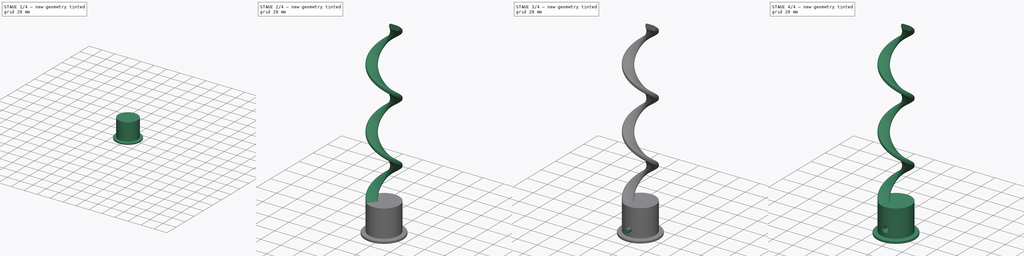
[diagram: build sequence overview — one tinted view per stage of 4, left to right]
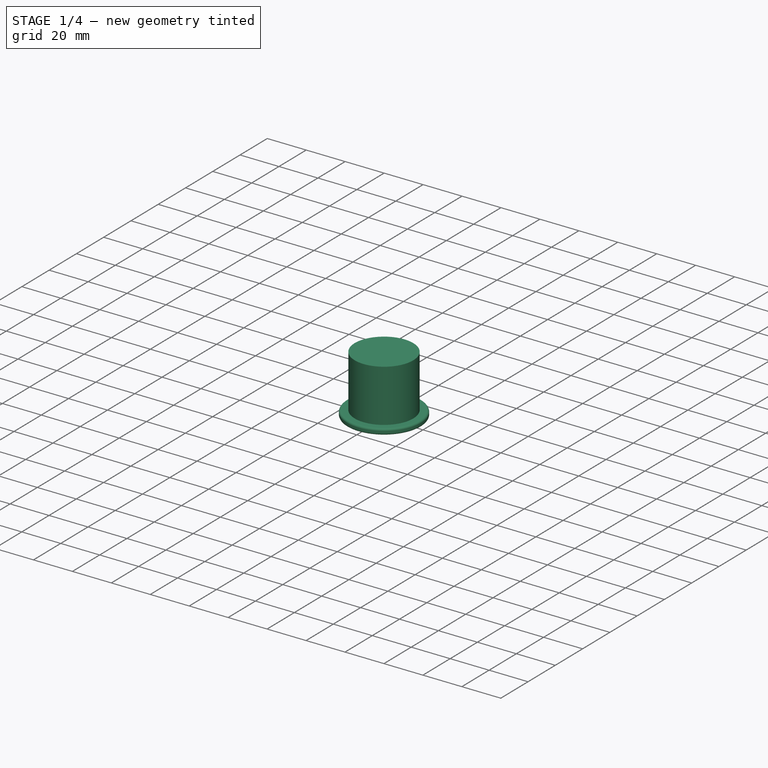
[diagram: stage 1 of 4 — iso view after this stage's code; geometry added in this stage tinted green]
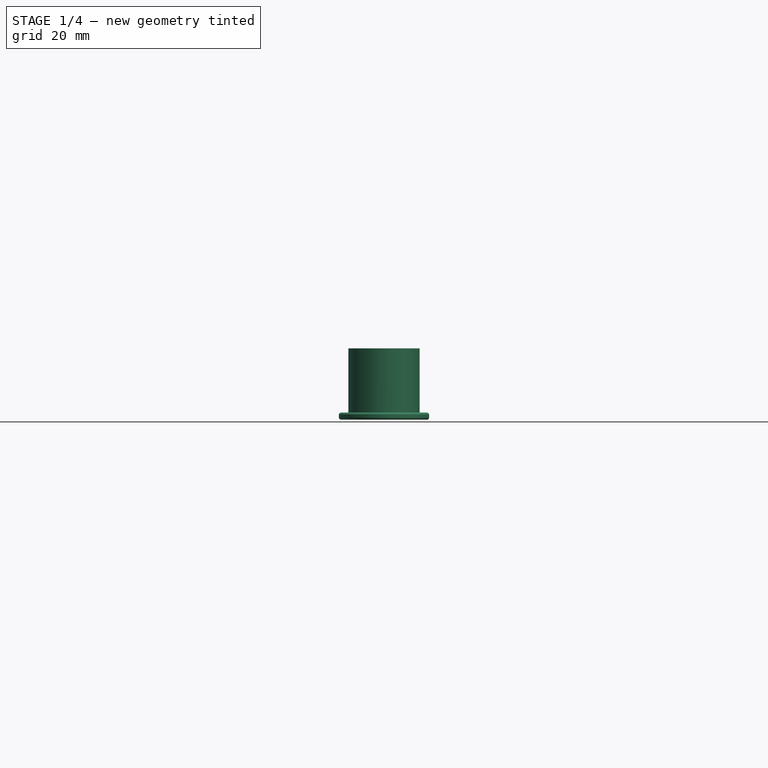
[diagram: stage 1 of 4 — front view after this stage's code; geometry added in this stage tinted green]
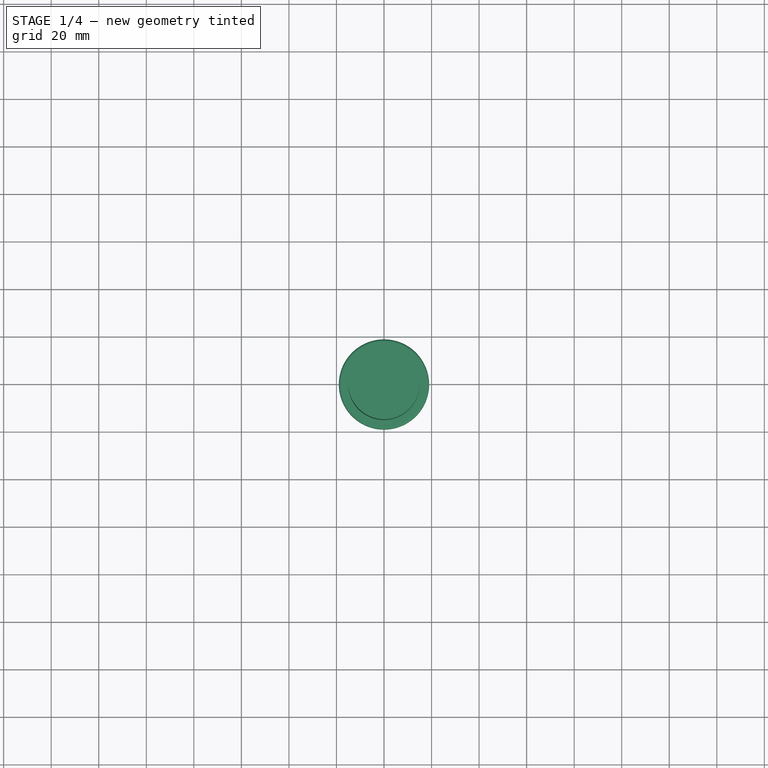
[diagram: stage 1 of 4 — top view after this stage's code; geometry added in this stage tinted green]
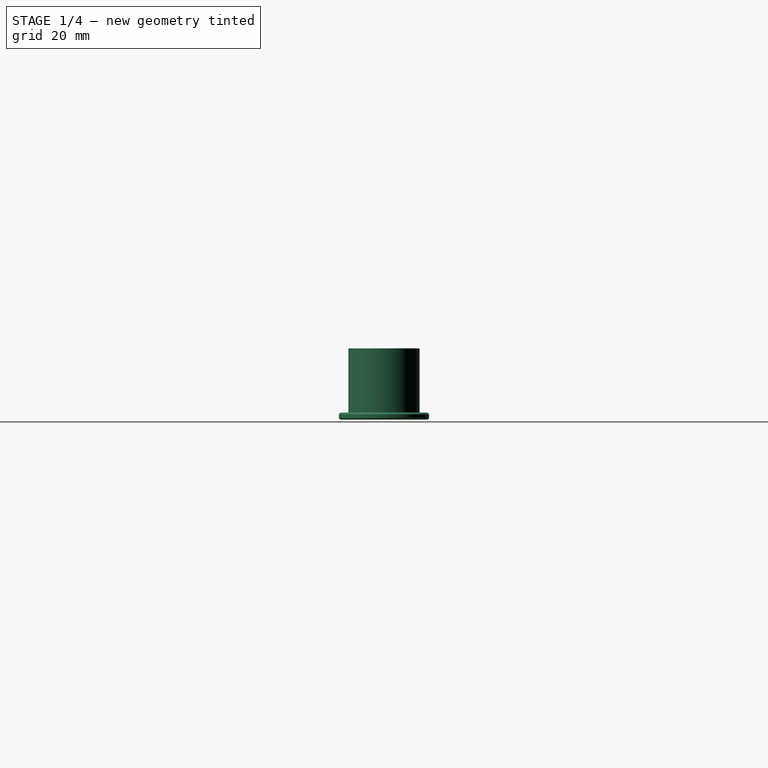
[diagram: stage 1 of 4 — right view after this stage's code; geometry added in this stage tinted green]
FCSTD DOCUMENT  (FreeCAD 0.19R24291 (Git))
Label: SpindelV2
License: All rights reserved
LicenseURL: http://en.wikipedia.org/wiki/All_rights_reserved
objects: Part::Cylinder×4, Part::Chamfer×2, Part::MultiFuse×2, Sketcher::SketchObject×1, Part::Helix×1, PartDesign::ShapeBinder×1, PartDesign::AdditivePipe×1, PartDesign::Body×1, Part::Fillet×1, Part::Cut×1
note: 16 computed .brp shape members not serialized (recipe doc carries the construction recipe); baked Part::Feature solids carry a one-line shape summary decoded from their .brp

FEATURE [Sketcher::SketchObject] Sketch
  FullyConstrained = true
  MapMode = 5
  Placement = pos=(0,0,0) rot=(1,0,0;1.5708rad)
  Support = -> [XZ_Plane]
  expr: Constraints[26] = .Constraints.Radius + .Constraints.Höhe
  expr: Constraints[24] = .Constraints.Radius
  expr: Constraints[23] = .Constraints.Radius
  expr: Constraints[19] = .Constraints.Radius
  expr: Constraints[20] = .Constraints.Radius
  expr: Constraints[27] = 15mm - .Constraints.Radius
  expr: Constraints[22] = .Constraints.Radius + .Constraints.Höhe
  expr: Constraints[14] = .Constraints.Breite
  expr: Constraints[16] = .Constraints.Höhe
  expr: Constraints[25] = .Constraints.Radius
  expr: Constraints[21] = .Constraints.Radius
  expr: Constraints[10] = .Constraints.Radius * 2 + 1mm
  sketch-geometry (8):
    g0: LineSegment StartX=7 StartY=-6.61315e-11 StartZ=0 EndX=13 EndY=-6.61315e-11 EndZ=0
    g1: LineSegment StartX=15 StartY=-2 StartZ=0 EndX=15 EndY=-3 EndZ=0
    g2: LineSegment StartX=13 StartY=-5 StartZ=0 EndX=7.00002 EndY=-5 EndZ=0
    g3: LineSegment StartX=5 StartY=-3 StartZ=0 EndX=5 EndY=-2 EndZ=0
    g4: ArcOfCircle CenterX=7 CenterY=-2 CenterZ=0 NormalX=0 NormalY=0 NormalZ=1 AngleXU=0 Radius=2 StartAngle=1.5708 EndAngle=3.14159
    g5: ArcOfCircle CenterX=7 CenterY=-3 CenterZ=0 NormalX=0 NormalY=0 NormalZ=1 AngleXU=0 Radius=2 StartAngle=3.14159 EndAngle=4.7124
    g6: ArcOfCircle CenterX=13 CenterY=-3 CenterZ=0 NormalX=0 NormalY=0 NormalZ=1 AngleXU=0 Radius=2 StartAngle=4.71239 EndAngle=6.28319
    g7: ArcOfCircle CenterX=13 CenterY=-2 CenterZ=0 NormalX=0 NormalY=0 NormalZ=1 AngleXU=0 Radius=2 StartAngle=0 EndAngle=1.5708
  constraints (28):
    c: Coincident(g0,g4)
    c: Coincident(g0,g7)
    c: Coincident(g1,g6)
    c: Horizontal(g0)
    c: Horizontal(g2)
    c: Vertical(g1)
    c: Vertical(g3)
    c: Coincident(g3,g4)
    c: Coincident(g1,g7)
    c: Radius(g7) = 2  'Radius'
    c: DistanceY(g6,g0) = 5
    c: Coincident(g2,g6)
    c: Coincident(g2,g5)
    c: DistanceX(g0,g0) = 6  'Breite'
    c: DistanceX(g2,g2) = 6
    c: DistanceY(g1,g1) = 1  'Höhe'
    c: DistanceY(g3,g3) = 1
    c: Coincident(g3,g5)
    c: DistanceY(g0,g-1) = 0
    c: Radius(g6) = 2
    c: Radius(g4) = 2
    c: DistanceY(g7,g-1) = 2
    c: DistanceY(g6,g-1) = 3
    c: DistanceY(g4,g-1) = 2
    c: DistanceY(g3,g-1) = 2
    c: DistanceY(g1,g-1) = 2
    c: DistanceY(g5,g-1) = 3
    c: DistanceX(g-1,g0) = 13
FEATURE [Part::Helix] Helix
  Angle = 0
  AttacherType = Attacher::AttachEngine3D
  Height = 180
  LocalCoord = 1
  Pitch = 60
  Radius = 12
  Style = 1
FEATURE [Part::Cylinder] Cylinder  label="Zylinder"
  Angle = 360
  AttacherType = Attacher::AttachEngine3D
  Height = 30
  Placement = pos=(0,0,-10) rot=(0,0,1;0rad)
  Radius = 15
FEATURE [Part::Cylinder] Cylinder001  label="Zylinder001"
  Angle = 360
  AttacherType = Attacher::AttachEngine3D
  Height = 3
  Placement = pos=(0,0,-10) rot=(0,0,1;0rad)
  Radius = 19
FEATURE [PartDesign::Body] Body
  Group = -> [Sketch,AdditivePipe,CopyHelix001]
  Origin = -> Origin
  Tip = -> AdditivePipe
FEATURE [Part::Fillet] Fillet
  Base = -> Cylinder001
  Edges = 2 edges r=1: [Edge1,Edge3]
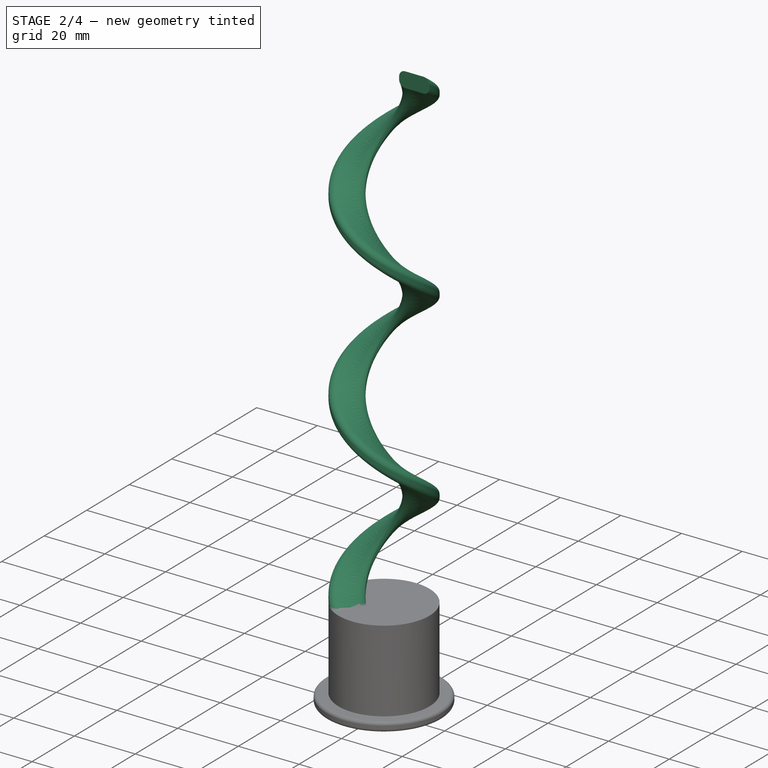
[diagram: stage 2 of 4 — iso view after this stage's code; geometry added in this stage tinted green]
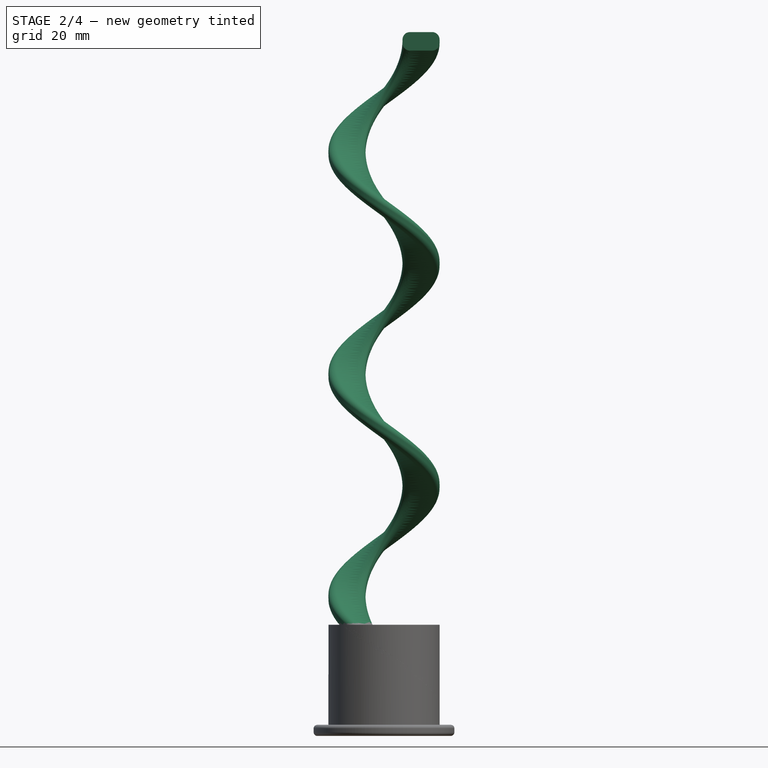
[diagram: stage 2 of 4 — front view after this stage's code; geometry added in this stage tinted green]
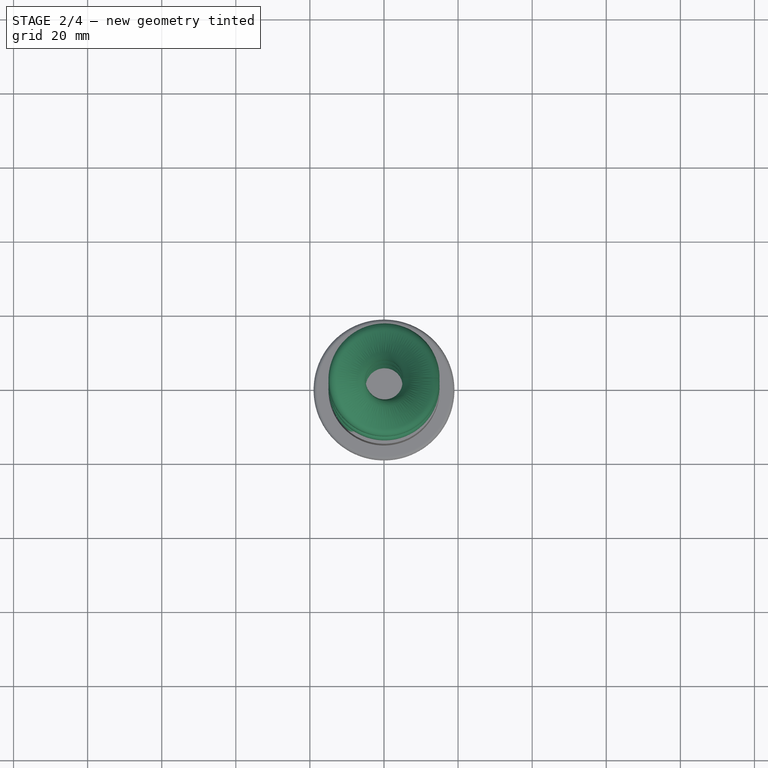
[diagram: stage 2 of 4 — top view after this stage's code; geometry added in this stage tinted green]
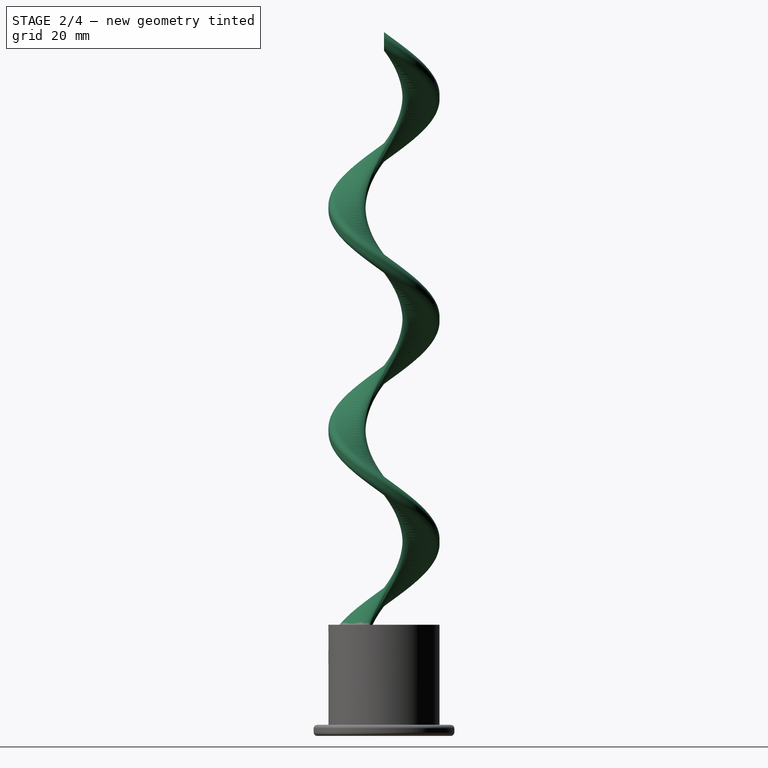
[diagram: stage 2 of 4 — right view after this stage's code; geometry added in this stage tinted green]
FEATURE [Part::Cylinder] Cylinder002  label="Zylinder002"
  Angle = 360
  AttacherType = Attacher::AttachEngine3D
  Height = 25
  Placement = pos=(0,0,-10) rot=(0,0,1;0rad)
  Radius = 2.6
FEATURE [PartDesign::ShapeBinder] CopyHelix001
  TraceSupport = false
FEATURE [PartDesign::AdditivePipe] AdditivePipe
  AllowMultiFace = false
  AuxilleryCurvelinear = true
  AuxillerySpineTangent = false
  Binormal = (0,0,0)
  Mode = 2
  Placement = pos=(0,0,0) rot=(1,0,0;1.5708rad)
  Profile = -> Sketch
  Spine = -> CopyHelix001
  SpineTangent = false
  Transformation = 0
  Transition = 0
FEATURE [Part::MultiFuse] Fusion
  Shapes = -> [Body,Cylinder,Fillet]
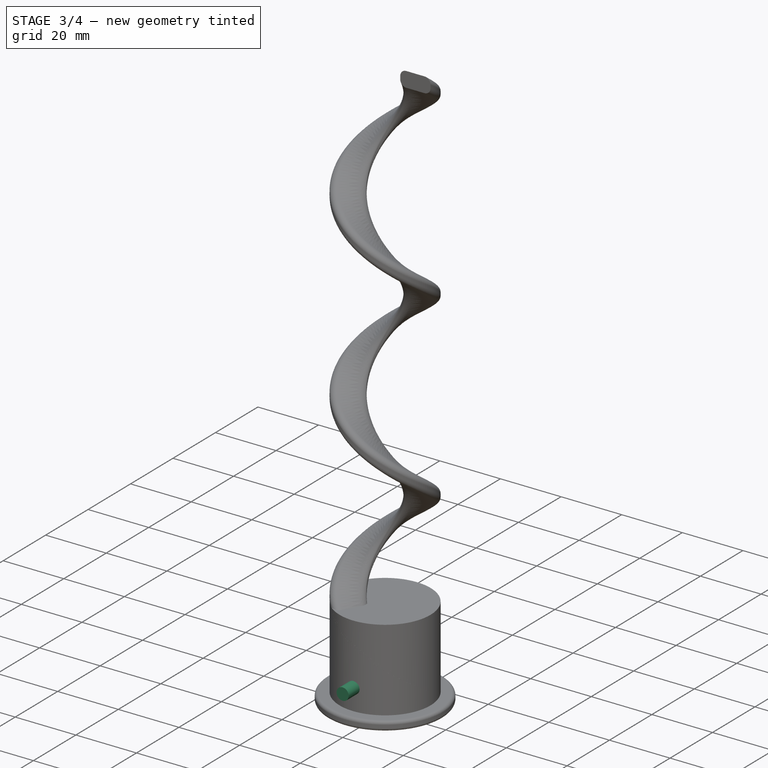
[diagram: stage 3 of 4 — iso view after this stage's code; geometry added in this stage tinted green]
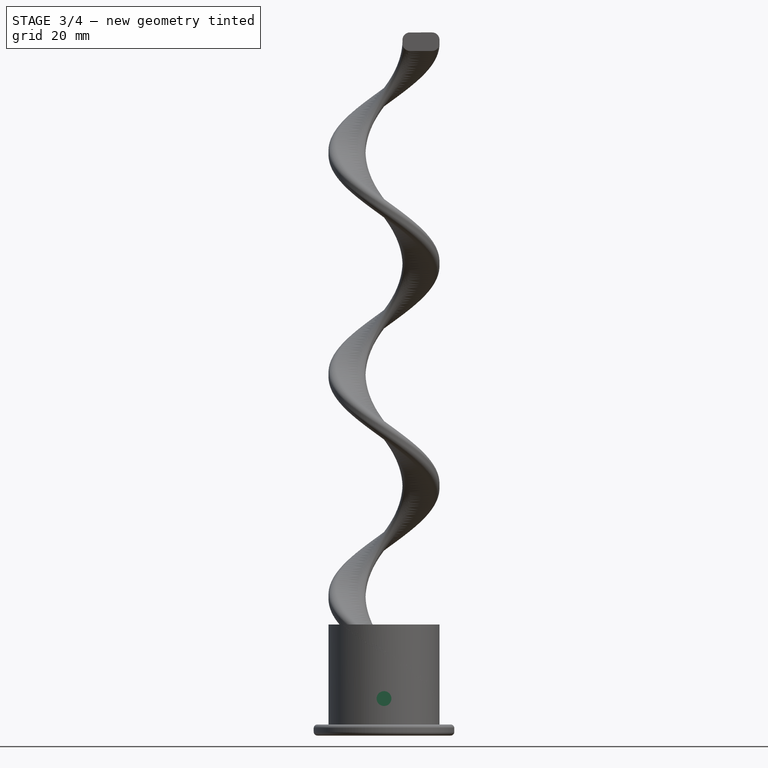
[diagram: stage 3 of 4 — front view after this stage's code; geometry added in this stage tinted green]
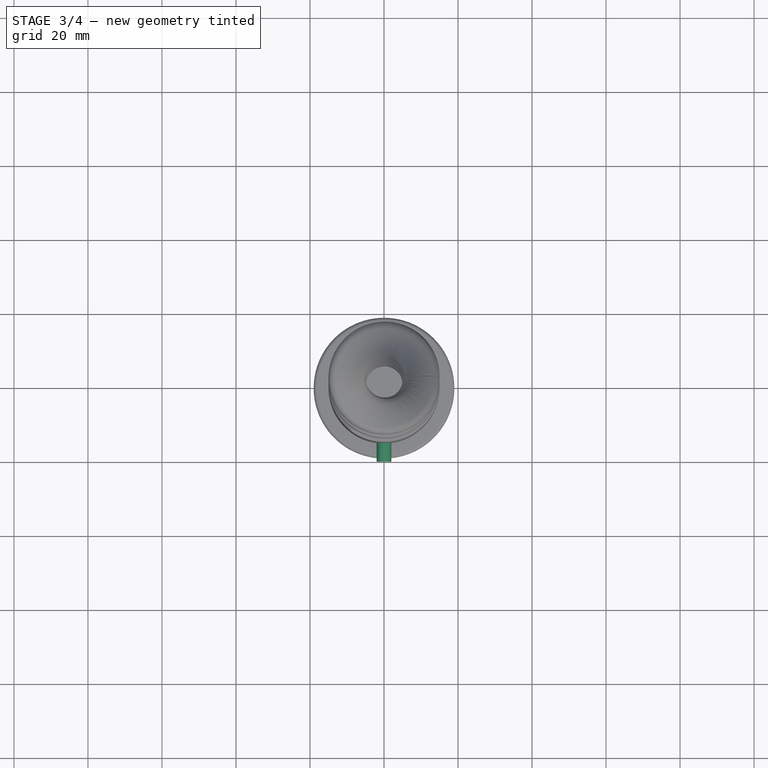
[diagram: stage 3 of 4 — top view after this stage's code; geometry added in this stage tinted green]
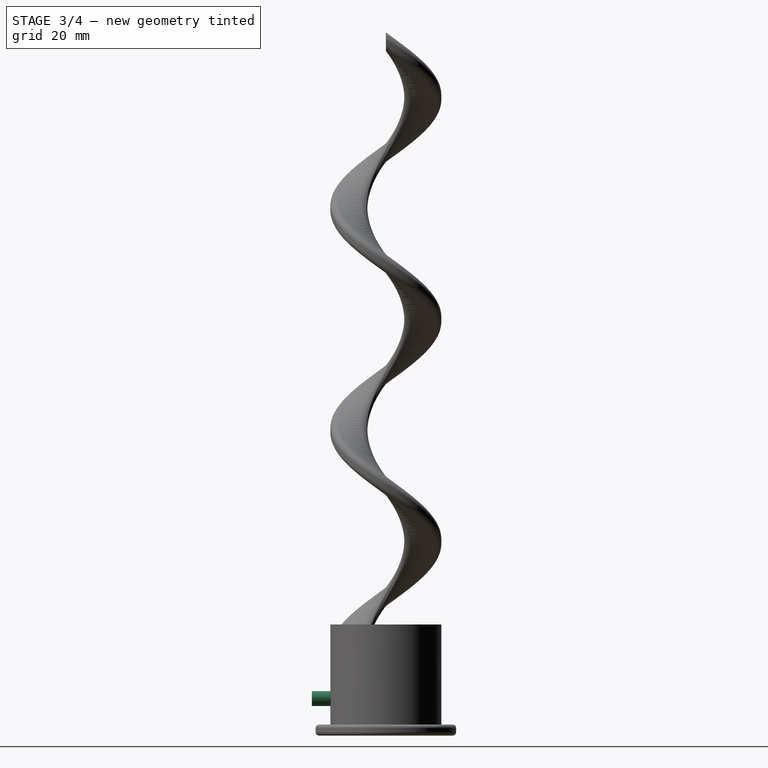
[diagram: stage 3 of 4 — right view after this stage's code; geometry added in this stage tinted green]
FEATURE [Part::Cylinder] Cylinder003  label="Zylinder003"
  Angle = 360
  AttacherType = Attacher::AttachEngine3D
  Height = 30
  Placement = pos=(0,10,4e-15) rot=(1,0,0;1.5708rad)
  Radius = 2
FEATURE [Part::Chamfer] Chamfer
  Base = -> Cylinder002
  Edges = 1 edges r=2.4: [Edge1]
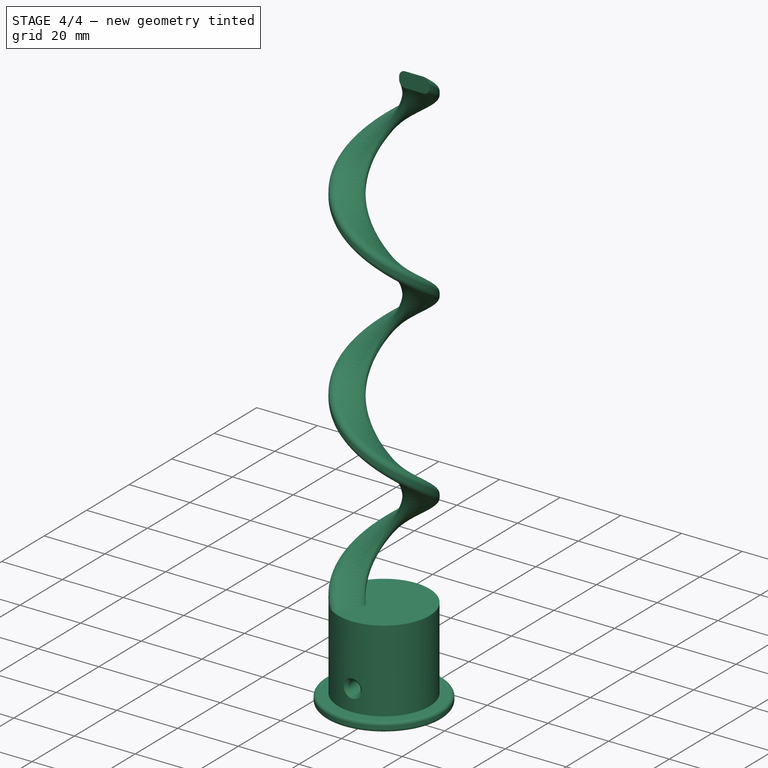
[diagram: stage 4 of 4 — iso view after this stage's code; geometry added in this stage tinted green]
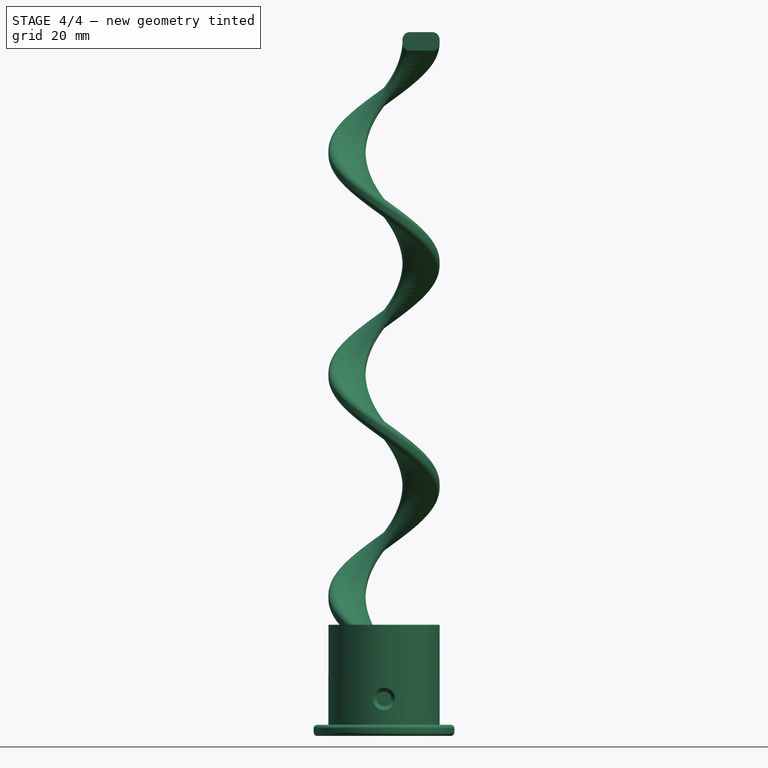
[diagram: stage 4 of 4 — front view after this stage's code; geometry added in this stage tinted green]
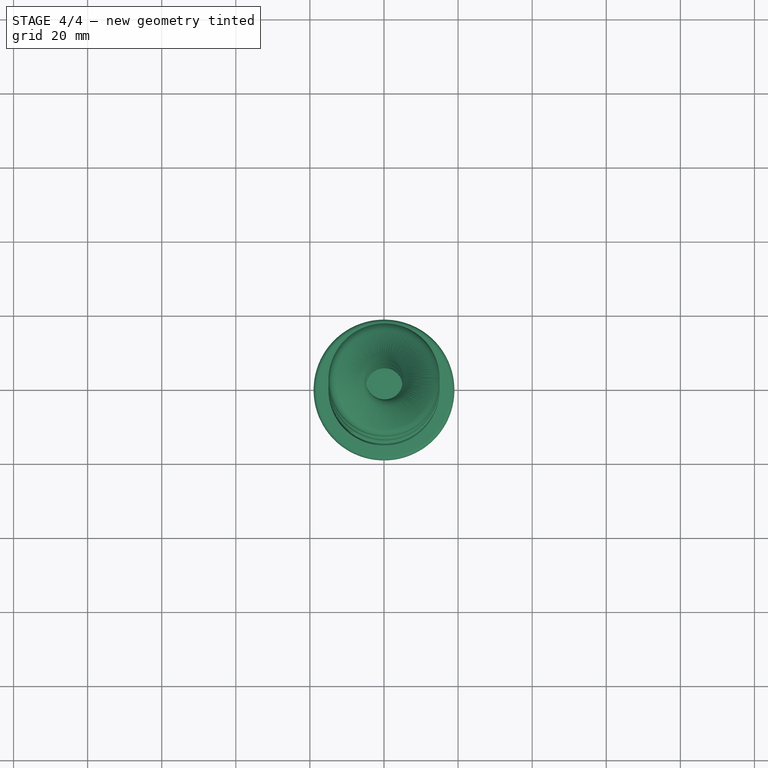
[diagram: stage 4 of 4 — top view after this stage's code; geometry added in this stage tinted green]
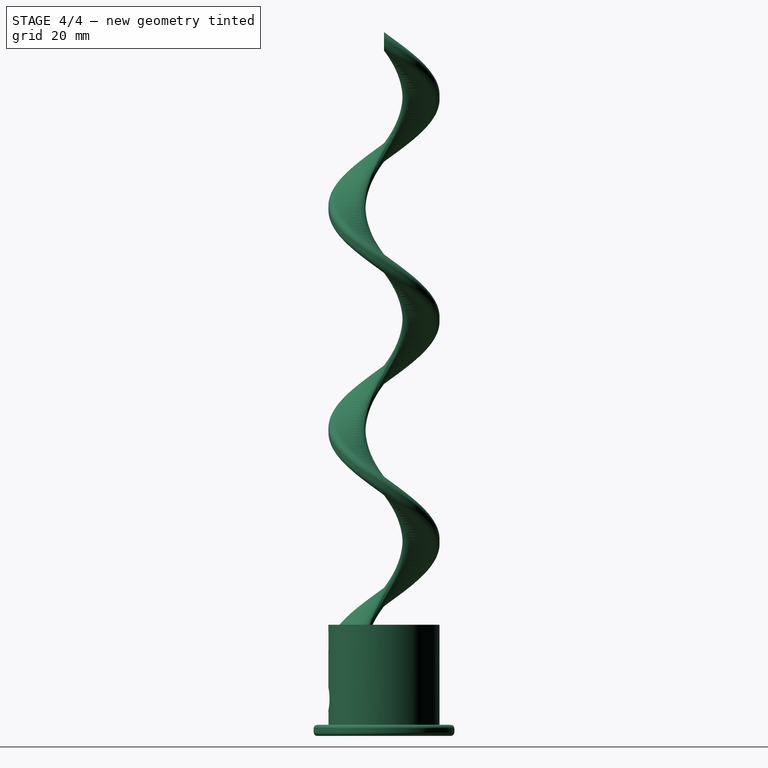
[diagram: stage 4 of 4 — right view after this stage's code; geometry added in this stage tinted green]
FEATURE [Part::MultiFuse] Fusion001
  Shapes = -> [Chamfer,Cylinder003]
FEATURE [Part::Cut] Cut
  Base = -> Fusion
  Tool = -> Fusion001
FEATURE [Part::Chamfer] Chamfer001
  Base = -> Cut
  Edges = 2 edges: [Edge20 r=1,Edge61 r=0.5]
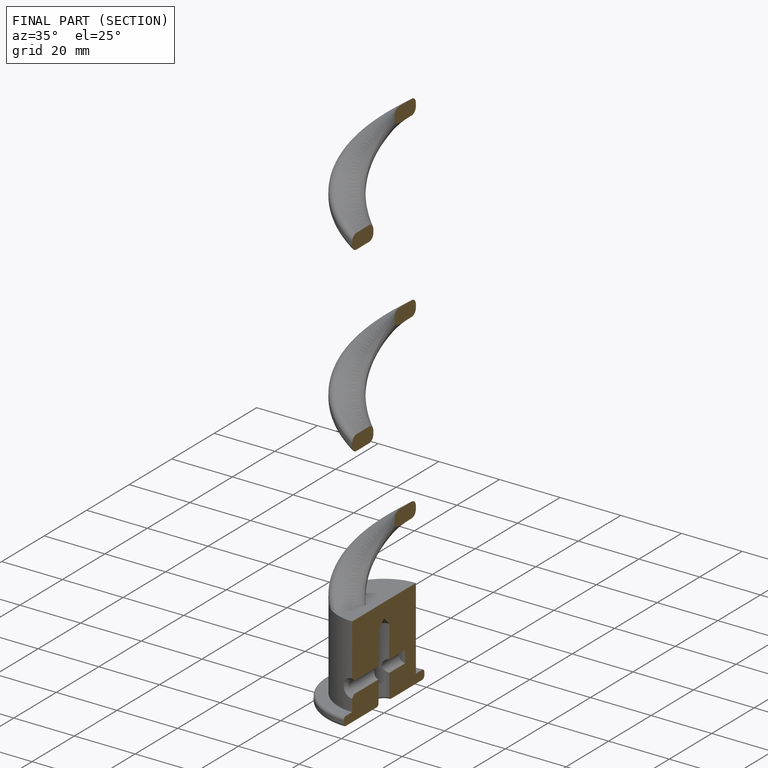
[diagram: finished part — half-section view (interior)]
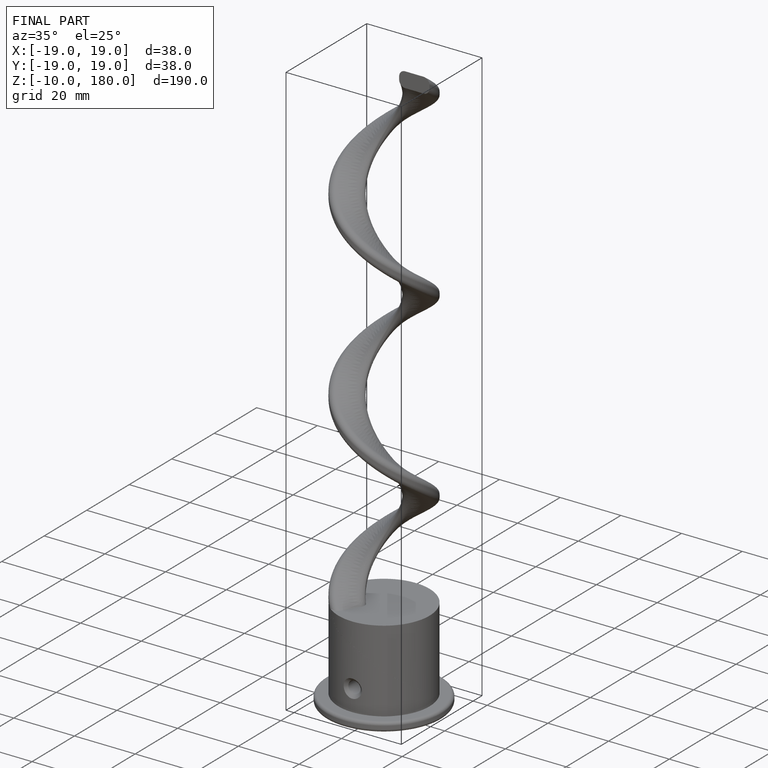
[diagram: finished part — iso view with bounding-box wireframe]
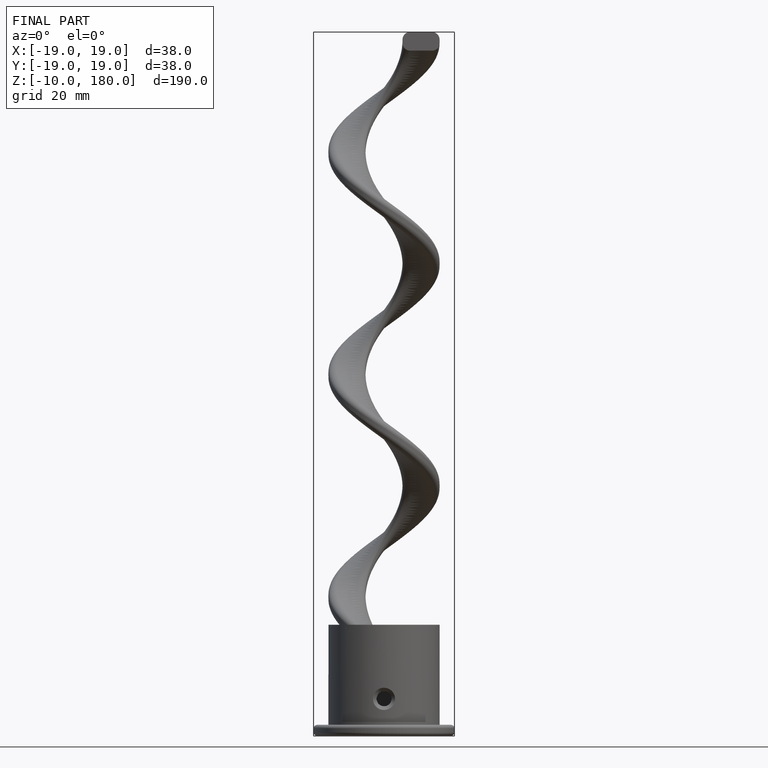
[diagram: finished part — front view with bounding-box wireframe]
